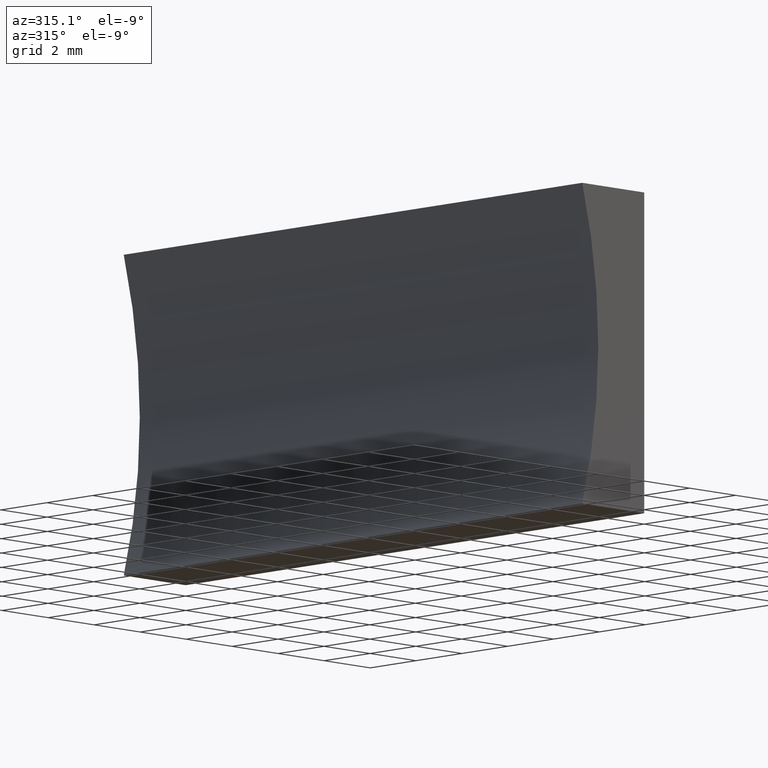
[diagram: clean part render]
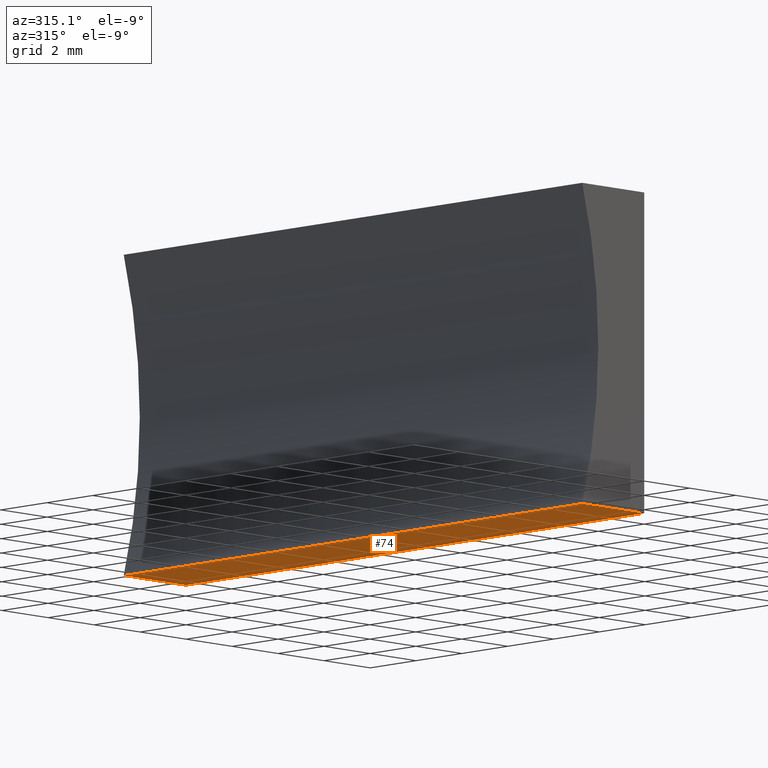
[diagram: same view with one face highlighted and labeled with its STEP entity id]
A machine part, auxiliary view. The second image highlights one B-rep face of the part: STEP entity #74.
In plain terms, the highlighted planar face has unit normal (0, -0, 1).
Its self-contained STEP definition (entity closure, byte-faithful):
#2 = FACE_OUTER_BOUND ( 'NONE', #146, .T. ) ;
#5 = DIRECTION ( 'NONE',  ( -1.000000000000000000, 0.0000000000000000000, 6.435587152311167000E-016 ) ) ;
#11 = CARTESIAN_POINT ( 'NONE',  ( 0.0000000000000000000, 20.00000000000000000, 0.0000000000000000000 ) ) ;
#13 = DIRECTION ( 'NONE',  ( -1.000000000000000000, 0.0000000000000000000, 6.435587152311167000E-016 ) ) ;
#16 = EDGE_CURVE ( 'NONE', #32, #86, #95, .T. ) ;
#29 = CARTESIAN_POINT ( 'NONE',  ( 0.0000000000000000000, 20.00000000000000000, 0.0000000000000000000 ) ) ;
#32 = VERTEX_POINT ( 'NONE', #101 ) ;
#33 = CARTESIAN_POINT ( 'NONE',  ( -2.695517028860106900, 20.00000000000000000, 1.734723475976807100E-015 ) ) ;
#35 = DIRECTION ( 'NONE',  ( 6.435587152311167000E-016, -0.0000000000000000000, 1.000000000000000000 ) ) ;
#44 = EDGE_CURVE ( 'NONE', #159, #32, #64, .T. ) ;
#51 = ORIENTED_EDGE ( 'NONE', *, *, #16, .F. ) ;
#58 = ORIENTED_EDGE ( 'NONE', *, *, #68, .T. ) ;
#60 = DIRECTION ( 'NONE',  ( 1.000000000000000000, 0.0000000000000000000, -6.435587152311167000E-016 ) ) ;
#61 = EDGE_CURVE ( 'NONE', #159, #131, #126, .T. ) ;
#63 = VECTOR ( 'NONE', #100, 1000.000000000000000 ) ;
#64 = LINE ( 'NONE', #89, #180 ) ;
#67 = ORIENTED_EDGE ( 'NONE', *, *, #44, .F. ) ;
#68 = EDGE_CURVE ( 'NONE', #131, #86, #151, .T. ) ;
#72 = CARTESIAN_POINT ( 'NONE',  ( 0.0000000000000000000, 20.00000000000000000, 0.0000000000000000000 ) ) ;
#74 = ADVANCED_FACE ( 'NONE', ( #2 ), #127, .F. ) ;
#77 = ORIENTED_EDGE ( 'NONE', *, *, #61, .T. ) ;
#86 = VERTEX_POINT ( 'NONE', #115 ) ;
#88 = DIRECTION ( 'NONE',  ( -0.0000000000000000000, -1.000000000000000000, -0.0000000000000000000 ) ) ;
#89 = CARTESIAN_POINT ( 'NONE',  ( 0.0000000000000000000, 20.00000000000000000, 0.0000000000000000000 ) ) ;
#91 = VECTOR ( 'NONE', #88, 1000.000000000000000 ) ;
#95 = LINE ( 'NONE', #33, #63 ) ;
#100 = DIRECTION ( 'NONE',  ( -0.0000000000000000000, -1.000000000000000000, -0.0000000000000000000 ) ) ;
#101 = CARTESIAN_POINT ( 'NONE',  ( -2.695517028860106900, 20.00000000000000000, 1.734723475976807100E-015 ) ) ;
#103 = CARTESIAN_POINT ( 'NONE',  ( 0.0000000000000000000, 0.0000000000000000000, 0.0000000000000000000 ) ) ;
#115 = CARTESIAN_POINT ( 'NONE',  ( -2.695517028860106900, 0.0000000000000000000, 1.734723475976807100E-015 ) ) ;
#125 = CARTESIAN_POINT ( 'NONE',  ( 0.0000000000000000000, 0.0000000000000000000, 0.0000000000000000000 ) ) ;
#126 = LINE ( 'NONE', #72, #91 ) ;
#127 = PLANE ( 'NONE',  #167 ) ;
#131 = VERTEX_POINT ( 'NONE', #103 ) ;
#146 = EDGE_LOOP ( 'NONE', ( #58, #51, #67, #77 ) ) ;
#151 = LINE ( 'NONE', #125, #188 ) ;
#159 = VERTEX_POINT ( 'NONE', #11 ) ;
#167 = AXIS2_PLACEMENT_3D ( 'NONE', #29, #35, #60 ) ;
#180 = VECTOR ( 'NONE', #13, 1000.000000000000000 ) ;
#188 = VECTOR ( 'NONE', #5, 1000.000000000000000 ) ;